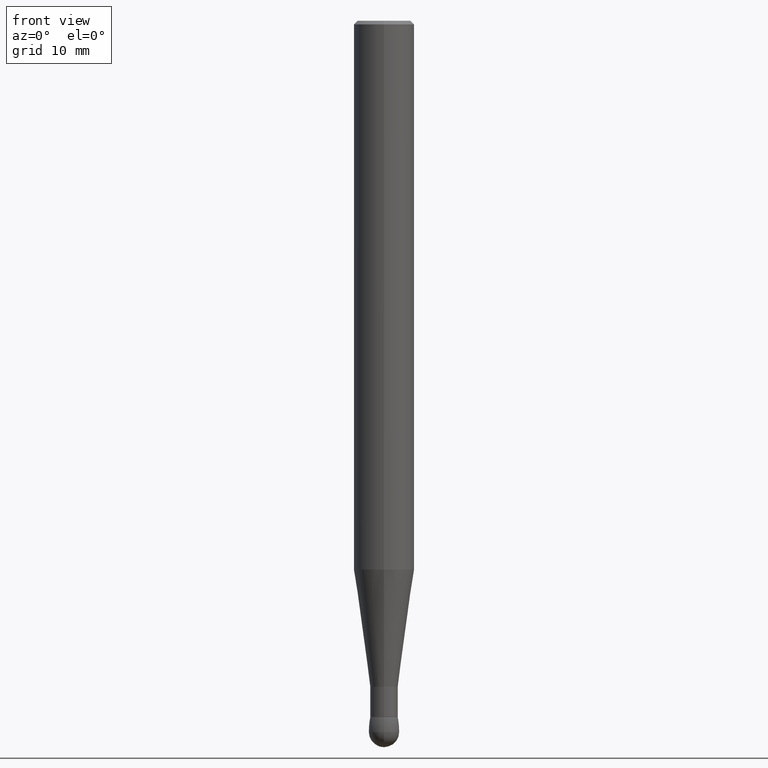
[diagram: clean part render]
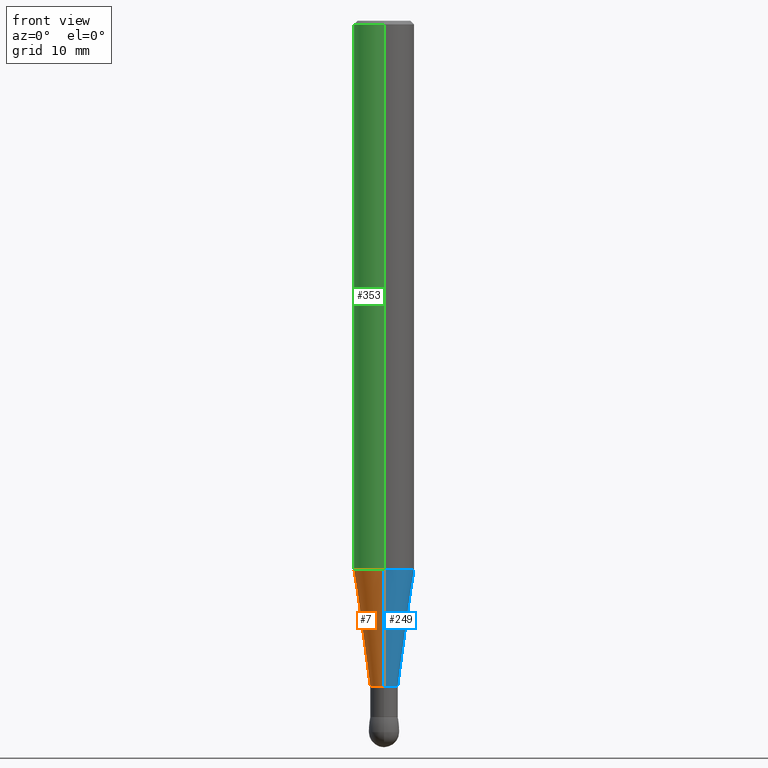
[diagram: same view with three faces highlighted in distinct colors, each labeled with its STEP entity id]
A machine part, front view with three faces highlighted in distinct colors.
Their STEP definitions:

[orange] entity #7 — the highlighted conical surface has half-angle 8 deg.
#1 = CIRCLE ( 'NONE', #103, 0.1249999999999996531 ) ;
#5 = CARTESIAN_POINT ( 'NONE',  ( 6.717350156635112977E-29, -9.612584853908374683E-15, -2.750000000000000000 ) ) ;
#7 = ADVANCED_FACE ( 'NONE', ( #89 ), #188, .T. ) ;
#10 = CIRCLE ( 'NONE', #279, 0.05700000000000052941 ) ;
#14 = CARTESIAN_POINT ( 'NONE',  ( 8.881784197001776916E-16, 0.1249999999999917011, -2.266154858877881928 ) ) ;
#34 = VECTOR ( 'NONE', #53, 39.37007874015748854 ) ;
#39 = ORIENTED_EDGE ( 'NONE', *, *, #274, .T. ) ;
#53 = DIRECTION ( 'NONE',  ( -9.718405697420266345E-16, -0.1391731009600623570, 0.9902680687415706950 ) ) ;
#60 = CARTESIAN_POINT ( 'NONE',  ( -8.728703347107258506E-16, -0.1250000000000076050, -2.266154858877880596 ) ) ;
#72 = CARTESIAN_POINT ( 'NONE',  ( 5.535474798633730122E-29, -7.921311226567415248E-15, -2.266154858877881484 ) ) ;
#78 = DIRECTION ( 'NONE',  ( 2.442672784230950021E-29, -3.495485401421227157E-15, -1.000000000000000000 ) ) ;
#80 = DIRECTION ( 'NONE',  ( 2.442672784230950021E-29, -3.495485401421227157E-15, -1.000000000000000000 ) ) ;
#88 = CARTESIAN_POINT ( 'NONE',  ( -6.354496036693893351E-16, -0.05700000000001013978, -2.750000000000000000 ) ) ;
#89 = FACE_OUTER_BOUND ( 'NONE', #119, .T. ) ;
#103 = AXIS2_PLACEMENT_3D ( 'NONE', #72, #78, #224 ) ;
#117 = CARTESIAN_POINT ( 'NONE',  ( 6.465938895417527815E-16, 0.05699999999999091904, -2.750000000000000000 ) ) ;
#119 = EDGE_LOOP ( 'NONE', ( #482, #238, #408, #39 ) ) ;
#134 = LINE ( 'NONE', #284, #360 ) ;
#142 = VERTEX_POINT ( 'NONE', #117 ) ;
#178 = AXIS2_PLACEMENT_3D ( 'NONE', #5, #343, #236 ) ;
#183 = EDGE_CURVE ( 'NONE', #142, #452, #134, .T. ) ;
#188 = CONICAL_SURFACE ( 'NONE', #178, 0.05700000000000052941, 0.1396263401595467524 ) ;
#224 = DIRECTION ( 'NONE',  ( 6.982962677686265922E-15, 1.000000000000000000, -4.370956789862832982E-15 ) ) ;
#228 = CARTESIAN_POINT ( 'NONE',  ( -3.980288726280537071E-16, -0.05700000000001013978, -2.750000000000000000 ) ) ;
#236 = DIRECTION ( 'NONE',  ( -6.982962677686265922E-15, -1.000000000000000000, 0.000000000000000000 ) ) ;
#238 = ORIENTED_EDGE ( 'NONE', *, *, #361, .F. ) ;
#256 = CARTESIAN_POINT ( 'NONE',  ( 6.717350156635112977E-29, -9.612584853908374683E-15, -2.750000000000000000 ) ) ;
#274 = EDGE_CURVE ( 'NONE', #425, #452, #1, .T. ) ;
#279 = AXIS2_PLACEMENT_3D ( 'NONE', #256, #80, #467 ) ;
#284 = CARTESIAN_POINT ( 'NONE',  ( 4.050093593833279701E-16, 0.05699999999999091904, -2.750000000000000000 ) ) ;
#343 = DIRECTION ( 'NONE',  ( -2.442672784230950021E-29, 3.495485401421227157E-15, 1.000000000000000000 ) ) ;
#360 = VECTOR ( 'NONE', #437, 39.37007874015748143 ) ;
#361 = EDGE_CURVE ( 'NONE', #382, #142, #10, .T. ) ;
#362 = EDGE_CURVE ( 'NONE', #382, #425, #424, .T. ) ;
#382 = VERTEX_POINT ( 'NONE', #88 ) ;
#408 = ORIENTED_EDGE ( 'NONE', *, *, #362, .T. ) ;
#424 = LINE ( 'NONE', #228, #34 ) ;
#425 = VERTEX_POINT ( 'NONE', #60 ) ;
#437 = DIRECTION ( 'NONE',  ( 9.888843590037935253E-16, 0.1391731009600692959, 0.9902680687415698069 ) ) ;
#452 = VERTEX_POINT ( 'NONE', #14 ) ;
#467 = DIRECTION ( 'NONE',  ( 6.982962677686265922E-15, 1.000000000000000000, 0.000000000000000000 ) ) ;
#482 = ORIENTED_EDGE ( 'NONE', *, *, #183, .F. ) ;

[blue] entity #249 — the highlighted conical surface has half-angle 8 deg.
#14 = CARTESIAN_POINT ( 'NONE',  ( 8.881784197001776916E-16, 0.1249999999999917011, -2.266154858877881928 ) ) ;
#17 = CARTESIAN_POINT ( 'NONE',  ( 6.717350156635112977E-29, -9.612584853908374683E-15, -2.750000000000000000 ) ) ;
#18 = CIRCLE ( 'NONE', #356, 0.1249999999999996531 ) ;
#34 = VECTOR ( 'NONE', #53, 39.37007874015748854 ) ;
#36 = DIRECTION ( 'NONE',  ( 2.442672784230950021E-29, -3.495485401421227157E-15, -1.000000000000000000 ) ) ;
#53 = DIRECTION ( 'NONE',  ( -9.718405697420266345E-16, -0.1391731009600623570, 0.9902680687415706950 ) ) ;
#60 = CARTESIAN_POINT ( 'NONE',  ( -8.728703347107258506E-16, -0.1250000000000076050, -2.266154858877880596 ) ) ;
#88 = CARTESIAN_POINT ( 'NONE',  ( -6.354496036693893351E-16, -0.05700000000001013978, -2.750000000000000000 ) ) ;
#92 = DIRECTION ( 'NONE',  ( 2.442672784230950021E-29, -3.495485401421227157E-15, -1.000000000000000000 ) ) ;
#96 = EDGE_CURVE ( 'NONE', #452, #425, #18, .T. ) ;
#108 = CARTESIAN_POINT ( 'NONE',  ( 6.717350156635112977E-29, -9.612584853908374683E-15, -2.750000000000000000 ) ) ;
#117 = CARTESIAN_POINT ( 'NONE',  ( 6.465938895417527815E-16, 0.05699999999999091904, -2.750000000000000000 ) ) ;
#122 = DIRECTION ( 'NONE',  ( 6.982962677686265922E-15, 1.000000000000000000, -4.370956789862832982E-15 ) ) ;
#128 = EDGE_LOOP ( 'NONE', ( #374, #295, #206, #227 ) ) ;
#134 = LINE ( 'NONE', #284, #360 ) ;
#142 = VERTEX_POINT ( 'NONE', #117 ) ;
#183 = EDGE_CURVE ( 'NONE', #142, #452, #134, .T. ) ;
#206 = ORIENTED_EDGE ( 'NONE', *, *, #96, .T. ) ;
#222 = EDGE_CURVE ( 'NONE', #142, #382, #344, .T. ) ;
#227 = ORIENTED_EDGE ( 'NONE', *, *, #362, .F. ) ;
#228 = CARTESIAN_POINT ( 'NONE',  ( -3.980288726280537071E-16, -0.05700000000001013978, -2.750000000000000000 ) ) ;
#241 = AXIS2_PLACEMENT_3D ( 'NONE', #17, #36, #251 ) ;
#249 = ADVANCED_FACE ( 'NONE', ( #413 ), #312, .T. ) ;
#251 = DIRECTION ( 'NONE',  ( 6.982962677686265922E-15, 1.000000000000000000, 0.000000000000000000 ) ) ;
#284 = CARTESIAN_POINT ( 'NONE',  ( 4.050093593833279701E-16, 0.05699999999999091904, -2.750000000000000000 ) ) ;
#286 = DIRECTION ( 'NONE',  ( -6.982962677686265922E-15, -1.000000000000000000, 0.000000000000000000 ) ) ;
#295 = ORIENTED_EDGE ( 'NONE', *, *, #183, .T. ) ;
#312 = CONICAL_SURFACE ( 'NONE', #385, 0.05700000000000052941, 0.1396263401595467524 ) ;
#344 = CIRCLE ( 'NONE', #241, 0.05700000000000052941 ) ;
#356 = AXIS2_PLACEMENT_3D ( 'NONE', #426, #92, #122 ) ;
#360 = VECTOR ( 'NONE', #437, 39.37007874015748143 ) ;
#362 = EDGE_CURVE ( 'NONE', #382, #425, #424, .T. ) ;
#374 = ORIENTED_EDGE ( 'NONE', *, *, #222, .F. ) ;
#382 = VERTEX_POINT ( 'NONE', #88 ) ;
#385 = AXIS2_PLACEMENT_3D ( 'NONE', #108, #486, #286 ) ;
#413 = FACE_OUTER_BOUND ( 'NONE', #128, .T. ) ;
#424 = LINE ( 'NONE', #228, #34 ) ;
#425 = VERTEX_POINT ( 'NONE', #60 ) ;
#426 = CARTESIAN_POINT ( 'NONE',  ( 5.535474798633730122E-29, -7.921311226567415248E-15, -2.266154858877881484 ) ) ;
#437 = DIRECTION ( 'NONE',  ( 9.888843590037935253E-16, 0.1391731009600692959, 0.9902680687415698069 ) ) ;
#452 = VERTEX_POINT ( 'NONE', #14 ) ;
#486 = DIRECTION ( 'NONE',  ( -2.442672784230950021E-29, 3.495485401421227157E-15, 1.000000000000000000 ) ) ;

[green] entity #353 — the highlighted cylindrical surface (edge-blend (fillet) strip) has radius 3.175 mm, axis along (0, -0, -1).
#1 = CIRCLE ( 'NONE', #103, 0.1249999999999996531 ) ;
#14 = CARTESIAN_POINT ( 'NONE',  ( 8.881784197001776916E-16, 0.1249999999999917011, -2.266154858877881928 ) ) ;
#16 = ORIENTED_EDGE ( 'NONE', *, *, #397, .T. ) ;
#31 = CYLINDRICAL_SURFACE ( 'NONE', #434, 0.1249999999999996253 ) ;
#60 = CARTESIAN_POINT ( 'NONE',  ( -8.728703347107258506E-16, -0.1250000000000076050, -2.266154858877880596 ) ) ;
#70 = DIRECTION ( 'NONE',  ( 2.442672784230950021E-29, -3.495485401421227157E-15, -1.000000000000000000 ) ) ;
#72 = CARTESIAN_POINT ( 'NONE',  ( 5.535474798633730122E-29, -7.921311226567415248E-15, -2.266154858877881484 ) ) ;
#78 = DIRECTION ( 'NONE',  ( 2.442672784230950021E-29, -3.495485401421227157E-15, -1.000000000000000000 ) ) ;
#98 = AXIS2_PLACEMENT_3D ( 'NONE', #330, #210, #364 ) ;
#103 = AXIS2_PLACEMENT_3D ( 'NONE', #72, #78, #224 ) ;
#136 = VERTEX_POINT ( 'NONE', #190 ) ;
#143 = CARTESIAN_POINT ( 'NONE',  ( -8.575622497214381912E-16, -0.1249999999999996392, -0.01499999999999926566 ) ) ;
#153 = DIRECTION ( 'NONE',  ( 2.442672784230950021E-29, -3.495485401421227157E-15, -1.000000000000000000 ) ) ;
#173 = LINE ( 'NONE', #440, #418 ) ;
#190 = CARTESIAN_POINT ( 'NONE',  ( 8.728703347107806764E-16, 0.1249999999999995420, -0.01500000000000014169 ) ) ;
#208 = VECTOR ( 'NONE', #153, 39.37007874015748143 ) ;
#210 = DIRECTION ( 'NONE',  ( 2.442672784230950021E-29, -3.495485401421227157E-15, -1.000000000000000000 ) ) ;
#221 = DIRECTION ( 'NONE',  ( 6.982962677686265922E-15, 1.000000000000000000, -4.370956789862834560E-15 ) ) ;
#224 = DIRECTION ( 'NONE',  ( 6.982962677686265922E-15, 1.000000000000000000, -4.370956789862832982E-15 ) ) ;
#231 = CIRCLE ( 'NONE', #98, 0.1249999999999995837 ) ;
#253 = CARTESIAN_POINT ( 'NONE',  ( 7.022684254663981800E-29, -1.004952052908603202E-14, -2.875000000000000444 ) ) ;
#274 = EDGE_CURVE ( 'NONE', #425, #452, #1, .T. ) ;
#285 = ORIENTED_EDGE ( 'NONE', *, *, #304, .T. ) ;
#303 = CARTESIAN_POINT ( 'NONE',  ( 8.728703347108507864E-16, 0.1249999999999895639, -2.875000000000000888 ) ) ;
#304 = EDGE_CURVE ( 'NONE', #331, #136, #231, .T. ) ;
#315 = EDGE_CURVE ( 'NONE', #331, #425, #173, .T. ) ;
#330 = CARTESIAN_POINT ( 'NONE',  ( 3.664009176346352619E-31, -5.243228102131736927E-17, -0.01499999999999970281 ) ) ;
#331 = VERTEX_POINT ( 'NONE', #143 ) ;
#352 = ORIENTED_EDGE ( 'NONE', *, *, #274, .F. ) ;
#353 = ADVANCED_FACE ( 'NONE', ( #367 ), #31, .T. ) ;
#364 = DIRECTION ( 'NONE',  ( 6.982962677686265133E-15, 1.000000000000000000, -3.500180241882349094E-15 ) ) ;
#367 = FACE_OUTER_BOUND ( 'NONE', #444, .T. ) ;
#397 = EDGE_CURVE ( 'NONE', #136, #452, #460, .T. ) ;
#418 = VECTOR ( 'NONE', #70, 39.37007874015748143 ) ;
#425 = VERTEX_POINT ( 'NONE', #60 ) ;
#434 = AXIS2_PLACEMENT_3D ( 'NONE', #253, #491, #221 ) ;
#440 = CARTESIAN_POINT ( 'NONE',  ( -8.575622497213685743E-16, -0.1250000000000096867, -2.875000000000000000 ) ) ;
#444 = EDGE_LOOP ( 'NONE', ( #449, #285, #16, #352 ) ) ;
#449 = ORIENTED_EDGE ( 'NONE', *, *, #315, .F. ) ;
#452 = VERTEX_POINT ( 'NONE', #14 ) ;
#460 = LINE ( 'NONE', #303, #208 ) ;
#491 = DIRECTION ( 'NONE',  ( 2.442672784230950021E-29, -3.495485401421227157E-15, -1.000000000000000000 ) ) ;